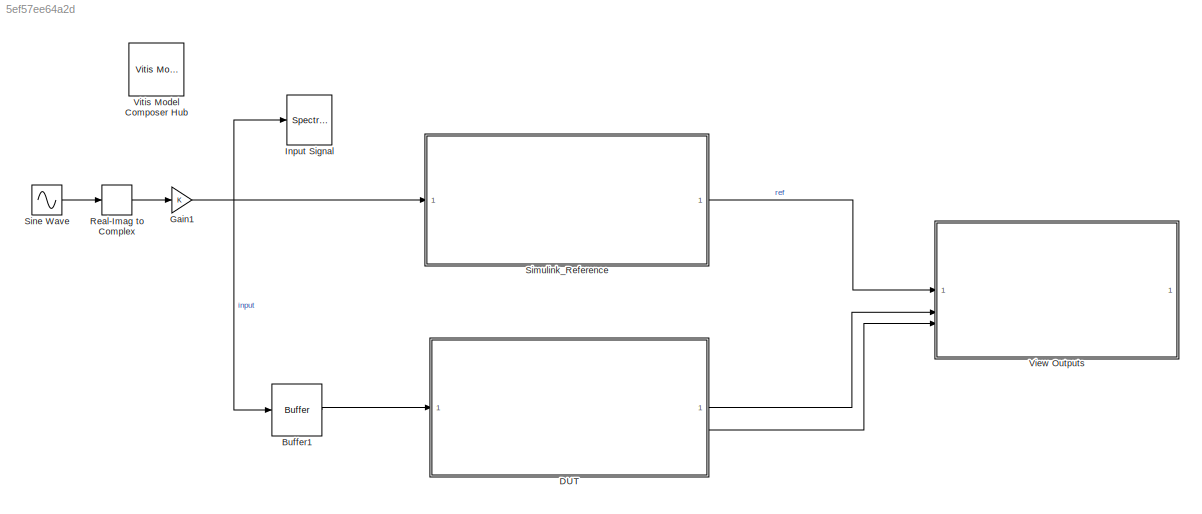
MODEL slx_5ef57ee64a2d
KIND model
CONFIG AbsTol = auto
CONFIG EnableMultiTasking = off
CONFIG FixedStep = auto
CONFIG InitFcn = sample_period=1/400e6;\ncoeffs_AIE_scaling;\ndds=75e6; % ddfs frequency
CONFIG MaxStep = auto
CONFIG MinStep = auto
CONFIG PreLoadFcn = sample_period=1/400e6;\ncoeffs_AIE_scaling;\ndds=75e6; % ddfs frequency
CONFIG RelTol = 1e-3
CONFIG SampleTimeConstraint = Unconstrained
CONFIG SolverName = VariableStepAuto
CONFIG StartTime = 0.0
CONFIG StopTime = sample_period*512*300
BLOCK [Buffer] Buffer1
  N = 32
  OutputFrames = off
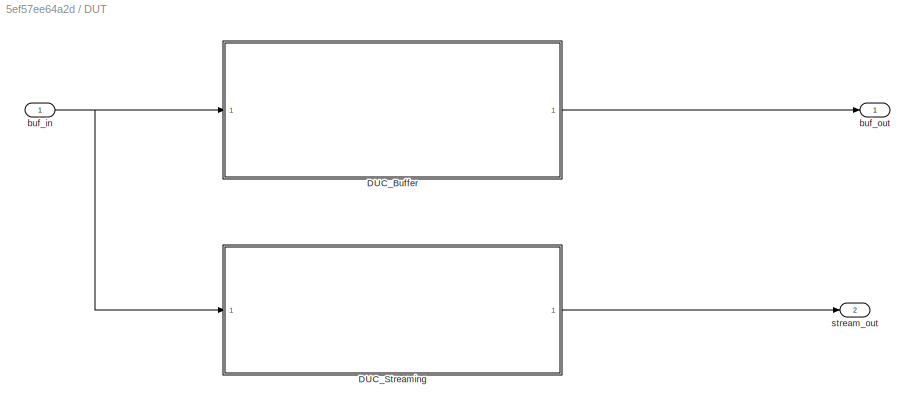
BLOCK [SubSystem] DUT
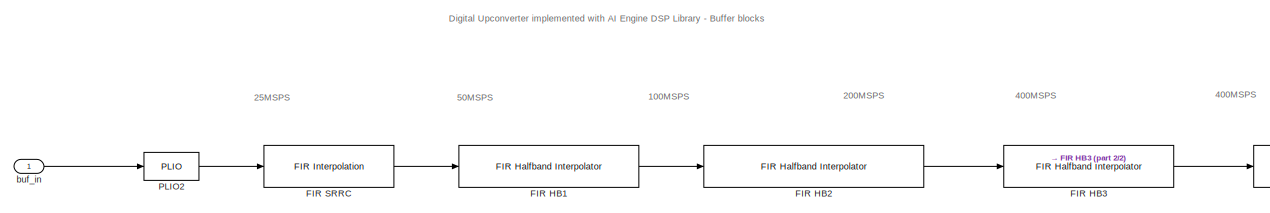
[diagram: DUT/DUC_Buffer - part 1/2, most of the canvas]
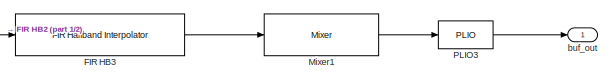
[diagram: DUT/DUC_Buffer - part 2/2, bottom right region]
BLOCK [SubSystem] DUT/DUC_Buffer
BLOCK [Reference] DUT/DUC_Buffer/FIR HB1  REF=aieDSP/FIR Halfband Interpolator
  SourceBlock = aieDSP/FIR Halfband Interpolator
  SourceType = FIR Halfband Interpolator
BLOCK [Reference] DUT/DUC_Buffer/FIR HB2  REF=aieDSP/FIR Halfband Interpolator
  SourceBlock = aieDSP/FIR Halfband Interpolator
  SourceType = FIR Halfband Interpolator
BLOCK [Reference] DUT/DUC_Buffer/FIR HB3  REF=aieDSP/FIR Halfband Interpolator
  SourceBlock = aieDSP/FIR Halfband Interpolator
  SourceType = FIR Halfband Interpolator
BLOCK [Reference] DUT/DUC_Buffer/FIR SRRC  REF=aieDSP/FIR Interpolation
  SourceBlock = aieDSP/FIR Interpolation
  SourceType = FIR Interpolation
BLOCK [Reference] DUT/DUC_Buffer/Mixer1  REF=aieDSP/Mixer
  SourceBlock = aieDSP/Mixer
  SourceType = Mixer
BLOCK [Reference] DUT/DUC_Buffer/PLIO2  REF=aieBasic/PLIO
  SourceBlock = aieBasic/PLIO
  SourceType = PLIO
BLOCK [Reference] DUT/DUC_Buffer/PLIO3  REF=aieBasic/PLIO
  SourceBlock = aieBasic/PLIO
  SourceType = PLIO
BLOCK [Inport] DUT/DUC_Buffer/buf_in
BLOCK [Outport] DUT/DUC_Buffer/buf_out
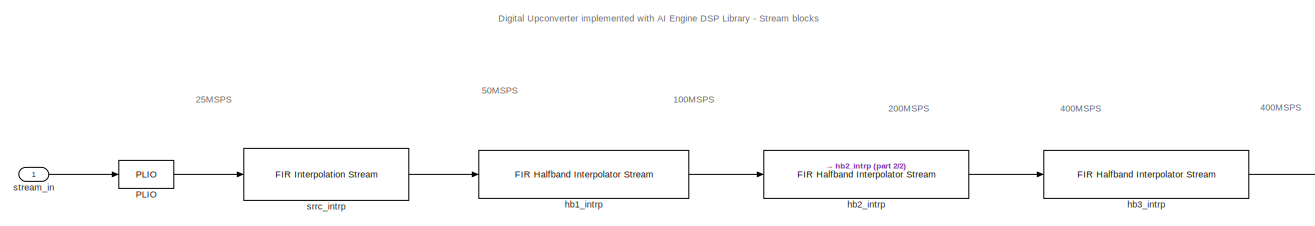
[diagram: DUT/DUC_Streaming - part 1/2, most of the canvas]
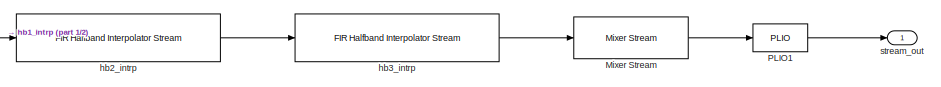
[diagram: DUT/DUC_Streaming - part 2/2, bottom right region]
BLOCK [SubSystem] DUT/DUC_Streaming
BLOCK [Reference] DUT/DUC_Streaming/Mixer Stream  REF=aieDSP/Mixer Stream
  SourceBlock = aieDSP/Mixer Stream
  SourceType = Mixer Stream
BLOCK [Reference] DUT/DUC_Streaming/PLIO  REF=aieBasic/PLIO
  SourceBlock = aieBasic/PLIO
  SourceType = PLIO
BLOCK [Reference] DUT/DUC_Streaming/PLIO1  REF=aieBasic/PLIO
  SourceBlock = aieBasic/PLIO
  SourceType = PLIO
BLOCK [Reference] DUT/DUC_Streaming/hb1_intrp  REF=aieDSP/FIR Halfband Interpolator Stream
  SourceBlock = aieDSP/FIR Halfband Interpolator Stream
  SourceType = FIR Halfband Interpolator Stream
BLOCK [Reference] DUT/DUC_Streaming/hb2_intrp  REF=aieDSP/FIR Halfband Interpolator Stream
  SourceBlock = aieDSP/FIR Halfband Interpolator Stream
  SourceType = FIR Halfband Interpolator Stream
BLOCK [Reference] DUT/DUC_Streaming/hb3_intrp  REF=aieDSP/FIR Halfband Interpolator Stream
  SourceBlock = aieDSP/FIR Halfband Interpolator Stream
  SourceType = FIR Halfband Interpolator Stream
BLOCK [Reference] DUT/DUC_Streaming/srrc_intrp  REF=aieDSP/FIR Interpolation Stream
  SourceBlock = aieDSP/FIR Interpolation Stream
  SourceType = FIR Interpolation Stream
BLOCK [Inport] DUT/DUC_Streaming/stream_in
BLOCK [Outport] DUT/DUC_Streaming/stream_out
BLOCK [Inport] DUT/buf_in
BLOCK [Outport] DUT/buf_out
BLOCK [Outport] DUT/stream_out
  Port = 2
BLOCK [Gain] Gain1
  OutDataTypeStr = fixdt(1,32,0)
  RndMeth = Convergent
BLOCK [SpectrumAnalyzer] Input Signal
  AllowFFTLengthLessThanSamplesPerUpdate = on
  AveragingMethod = Exponential
  ChannelNames = [""]
  DefaultConfigurationName = spbscopes.SpectrumAnalyzerBlockCfg
  GraphicalSettings = {"GraphicalSettings":{"Style":{"BackgroundColor":[0.12941176470588237,0.12941176470588237,0.12941176470588237],"AxesColor":[0.07058823529411765,0.07058823529411765,0.07058823529411765],"LabelsColor":[0.8509803921568627,0.8509803921568627,0.8509803921568627],"PreserveColors":false,"Visible":[true],"LineStyle":["-"],"LineColor":[[1,0.9098039215686274,0.39215686274509803]],"LineWidth":[1.5],"Marker":...<+946ch>
  ScopeFrameLocation = window
  ScopeSpecificationString = spbscopes.SpectrumAnalyzerBlockCfg('CurrentConfiguration', extmgr.ConfigurationSet(extmgr.Configuration('Core','General UI',true,'FigureColor',[0.12941     0.12941     0.12941]),extmgr.Configuration('Visuals','Spectrum',true,'Title','','YLabel','','MinYLim','-2.9587','MaxYLim','93.6126','Legend',true,'AxesProperties',struct('XGrid',{'on','on'},'YGrid',{'on','on'},'ZGrid',{'on','on'},'Color',{[0.07...<+2429ch>
  ShowLegend = on
  Span = 25000000
  StartFrequency = -12500000
  StopFrequency = 12500000
  Visible = on
  WasSavedAsWebScope = on
  WindowPosition = [300.000000,223.000000,800.000000,500.000000,]
  YLimits = [-3.33205425,93.65392451]
BLOCK [RealImagToComplex] Real-Imag to Complex
  Input = Real
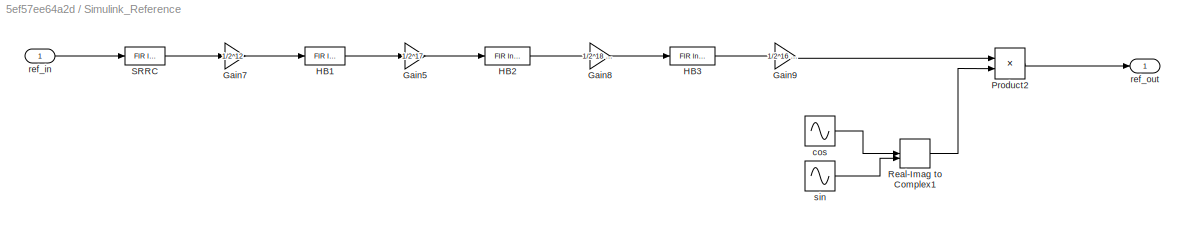
BLOCK [SubSystem] Simulink_Reference
BLOCK [Gain] Simulink_Reference/Gain5
  Gain = 1/2^17
  OutDataTypeStr = fixdt(1,32,0)
  RndMeth = Convergent
BLOCK [Gain] Simulink_Reference/Gain7
  Gain = 1/2^12
  OutDataTypeStr = fixdt(1,32,0)
  RndMeth = Convergent
BLOCK [Gain] Simulink_Reference/Gain8
  Gain = 1/2^18 % 10
  OutDataTypeStr = fixdt(1,32,0)
  RndMeth = Convergent
BLOCK [Gain] Simulink_Reference/Gain9
  Gain = 1/2^16 % was 14
  OutDataTypeStr = fixdt(1,32,0)
  RndMeth = Convergent
BLOCK [Reference] Simulink_Reference/HB1  REF=dspmlti4/FIR
Interpolation
  SourceBlock = dspmlti4/FIR\nInterpolation
  SourceType = FIR Interpolation
  UserDataPersistent = on
BLOCK [Reference] Simulink_Reference/HB2  REF=dspmlti4/FIR
Interpolation
  SourceBlock = dspmlti4/FIR\nInterpolation
  SourceType = FIR Interpolation
  UserDataPersistent = on
BLOCK [Reference] Simulink_Reference/HB3  REF=dspmlti4/FIR
Interpolation
  SourceBlock = dspmlti4/FIR\nInterpolation
  SourceType = FIR Interpolation
  UserDataPersistent = on
BLOCK [Product] Simulink_Reference/Product2
BLOCK [RealImagToComplex] Simulink_Reference/Real-Imag to Complex1
BLOCK [Reference] Simulink_Reference/SRRC  REF=dspmlti4/FIR
Interpolation
  SourceBlock = dspmlti4/FIR\nInterpolation
  SourceType = FIR Interpolation
  UserDataPersistent = on
BLOCK [Sin] Simulink_Reference/cos
  Frequency = dds*2*pi
  Phase = pi/2
  SampleTime = sample_period
  VectorParams1D = off
BLOCK [Inport] Simulink_Reference/ref_in
BLOCK [Outport] Simulink_Reference/ref_out
BLOCK [Sin] Simulink_Reference/sin
  Frequency = dds*2*pi
  SampleTime = sample_period
  VectorParams1D = off
BLOCK [Sin] Sine Wave
  Amplitude = 1000
  Frequency = 2*pi*1e6
  SampleTime = 16*sample_period
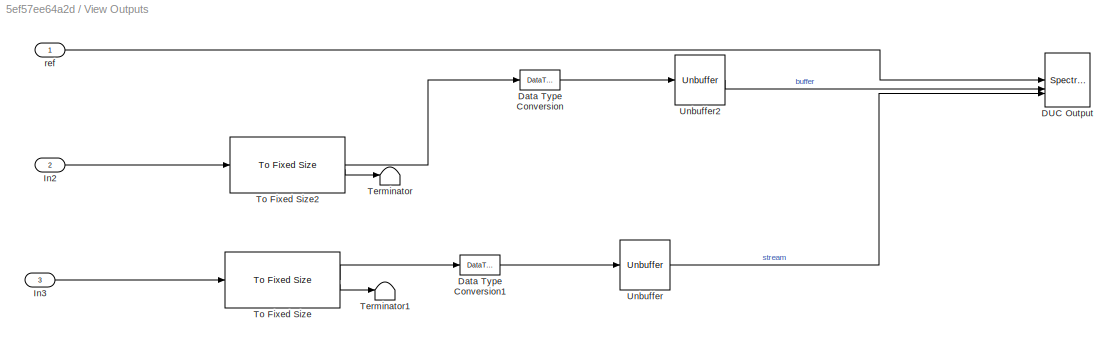
BLOCK [SubSystem] View Outputs
BLOCK [SpectrumAnalyzer] View Outputs/DUC Output
  AllowFFTLengthLessThanSamplesPerUpdate = on
  AveragingMethod = Exponential
  AxesScaling = Manual
  ChannelNames = [""]
  DefaultConfigurationName = spbscopes.SpectrumAnalyzerBlockCfg
  GraphicalSettings = {"GraphicalSettings":{"Style":{"BackgroundColor":[0.12941176470588237,0.12941176470588237,0.12941176470588237],"AxesColor":[0.07058823529411765,0.07058823529411765,0.07058823529411765],"LabelsColor":[0.8509803921568627,0.8509803921568627,0.8509803921568627],"PreserveColors":false,"Visible":[true,true,true],"LineStyle":["-","-","-"],"LineColor":[[1,0.9098039215686274,0.39215686274509803],[0.1490196...<+1105ch>
  NumInputPorts = 3
  ScopeFrameLocation = window
  ScopeSpecificationString = spbscopes.SpectrumAnalyzerBlockCfg('CurrentConfiguration', extmgr.ConfigurationSet(extmgr.Configuration('Core','General UI',true,'FigureColor',[0.12941     0.12941     0.12941]),extmgr.Configuration('Visuals','Spectrum',true,'Title','','YLabel','','MinYLim','-131.9558','MaxYLim','164.7163','Legend',true,'AxesProperties',struct('XGrid',{'on','on'},'YGrid',{'on','on'},'ZGrid',{'on','on'},'Color',{[0...<+2497ch>
  ShowLegend = on
  Visible = on
  WasSavedAsWebScope = on
  WindowPosition = [305.000000,194.000000,800.000000,500.000000,]
  YLimits = [-9.95001267,151.16002536]
BLOCK [DataTypeConversion] View Outputs/Data Type Conversion
  OutDataTypeStr = single
  RndMeth = Floor
  SaturateOnIntegerOverflow = off
BLOCK [DataTypeConversion] View Outputs/Data Type Conversion1
  OutDataTypeStr = single
  RndMeth = Floor
  SaturateOnIntegerOverflow = off
BLOCK [Inport] View Outputs/In2
  Port = 2
BLOCK [Inport] View Outputs/In3
  Port = 3
BLOCK [Terminator] View Outputs/Terminator
BLOCK [Terminator] View Outputs/Terminator1
BLOCK [Reference] View Outputs/To Fixed Size  REF=aieUtilities/To Fixed Size
  SourceBlock = aieUtilities/To Fixed Size
  SourceType = To Fixed Size
BLOCK [Reference] View Outputs/To Fixed Size2  REF=aieUtilities/To Fixed Size
  SourceBlock = aieUtilities/To Fixed Size
  SourceType = To Fixed Size
BLOCK [Unbuffer] View Outputs/Unbuffer
BLOCK [Unbuffer] View Outputs/Unbuffer2
BLOCK [Inport] View Outputs/ref
BLOCK [Reference] Vitis Model Composer Hub  REF=vmcUtilities/Vitis Model Composer Hub
  SourceBlock = vmcUtilities/Vitis Model Composer Hub
  SourceType = VMC Hub
  Tag = genX
  UserDataPersistent = on
ANNOTATION DUT/DUC_Buffer: 100MSPS
ANNOTATION DUT/DUC_Buffer: 200MSPS
ANNOTATION DUT/DUC_Buffer: 25MSPS
ANNOTATION DUT/DUC_Buffer: 400MSPS
ANNOTATION DUT/DUC_Buffer: 50MSPS
ANNOTATION DUT/DUC_Buffer: Digital Upconverter implemented with AI Engine DSP Library - Buffer blocks
ANNOTATION DUT/DUC_Streaming: 100MSPS
ANNOTATION DUT/DUC_Streaming: 200MSPS
ANNOTATION DUT/DUC_Streaming: 25MSPS
ANNOTATION DUT/DUC_Streaming: 400MSPS
ANNOTATION DUT/DUC_Streaming: 50MSPS
ANNOTATION DUT/DUC_Streaming: Digital Upconverter implemented with AI Engine DSP Library - Stream blocks
LINE Buffer1:1 -> DUT:1
LINE DUT/DUC_Buffer/FIR HB1:1 -> DUT/DUC_Buffer/FIR HB2:1
LINE DUT/DUC_Buffer/FIR HB2:1 -> DUT/DUC_Buffer/FIR HB3:1
LINE DUT/DUC_Buffer/FIR HB3:1 -> DUT/DUC_Buffer/Mixer1:1
LINE DUT/DUC_Buffer/FIR SRRC:1 -> DUT/DUC_Buffer/FIR HB1:1
LINE DUT/DUC_Buffer/Mixer1:1 -> DUT/DUC_Buffer/PLIO3:1
LINE DUT/DUC_Buffer/PLIO2:1 -> DUT/DUC_Buffer/FIR SRRC:1
LINE DUT/DUC_Buffer/PLIO3:1 -> DUT/DUC_Buffer/buf_out:1
LINE DUT/DUC_Buffer/buf_in:1 -> DUT/DUC_Buffer/PLIO2:1
LINE DUT/DUC_Buffer:1 -> DUT/buf_out:1
LINE DUT/DUC_Streaming/Mixer Stream:1 -> DUT/DUC_Streaming/PLIO1:1
LINE DUT/DUC_Streaming/PLIO1:1 -> DUT/DUC_Streaming/stream_out:1
LINE DUT/DUC_Streaming/PLIO:1 -> DUT/DUC_Streaming/srrc_intrp:1
LINE DUT/DUC_Streaming/hb1_intrp:1 -> DUT/DUC_Streaming/hb2_intrp:1
LINE DUT/DUC_Streaming/hb2_intrp:1 -> DUT/DUC_Streaming/hb3_intrp:1
LINE DUT/DUC_Streaming/hb3_intrp:1 -> DUT/DUC_Streaming/Mixer Stream:1
LINE DUT/DUC_Streaming/srrc_intrp:1 -> DUT/DUC_Streaming/hb1_intrp:1
LINE DUT/DUC_Streaming/stream_in:1 -> DUT/DUC_Streaming/PLIO:1
LINE DUT/DUC_Streaming:1 -> DUT/stream_out:1
NET DUT/buf_in:1 -> DUT/DUC_Buffer:1, DUT/DUC_Streaming:1
LINE DUT:1 -> View Outputs:2
LINE DUT:2 -> View Outputs:3
NET Gain1:1 -> Buffer1:1, Input Signal:1, Simulink_Reference:1
LINE Real-Imag to Complex:1 -> Gain1:1
LINE Simulink_Reference/Gain5:1 -> Simulink_Reference/HB2:1
LINE Simulink_Reference/Gain7:1 -> Simulink_Reference/HB1:1
LINE Simulink_Reference/Gain8:1 -> Simulink_Reference/HB3:1
LINE Simulink_Reference/Gain9:1 -> Simulink_Reference/Product2:1
LINE Simulink_Reference/HB1:1 -> Simulink_Reference/Gain5:1
LINE Simulink_Reference/HB2:1 -> Simulink_Reference/Gain8:1
LINE Simulink_Reference/HB3:1 -> Simulink_Reference/Gain9:1
LINE Simulink_Reference/Product2:1 -> Simulink_Reference/ref_out:1
LINE Simulink_Reference/Real-Imag to Complex1:1 -> Simulink_Reference/Product2:2
LINE Simulink_Reference/SRRC:1 -> Simulink_Reference/Gain7:1
LINE Simulink_Reference/cos:1 -> Simulink_Reference/Real-Imag to Complex1:1
LINE Simulink_Reference/ref_in:1 -> Simulink_Reference/SRRC:1
LINE Simulink_Reference/sin:1 -> Simulink_Reference/Real-Imag to Complex1:2
LINE Simulink_Reference:1 -> View Outputs:1
LINE Sine Wave:1 -> Real-Imag to Complex:1
LINE View Outputs/Data Type Conversion1:1 -> View Outputs/Unbuffer:1
LINE View Outputs/Data Type Conversion:1 -> View Outputs/Unbuffer2:1
LINE View Outputs/In2:1 -> View Outputs/To Fixed Size2:1
LINE View Outputs/In3:1 -> View Outputs/To Fixed Size:1
LINE View Outputs/To Fixed Size2:1 -> View Outputs/Data Type Conversion:1
LINE View Outputs/To Fixed Size2:2 -> View Outputs/Terminator:1
LINE View Outputs/To Fixed Size:1 -> View Outputs/Data Type Conversion1:1
LINE View Outputs/To Fixed Size:2 -> View Outputs/Terminator1:1
LINE View Outputs/Unbuffer2:1 -> View Outputs/DUC Output:2
LINE View Outputs/Unbuffer:1 -> View Outputs/DUC Output:3
LINE View Outputs/ref:1 -> View Outputs/DUC Output:1
note: NET lines group one-source signal fan-out (src -> all destinations, sorted); 1:1 wires keep LINE
